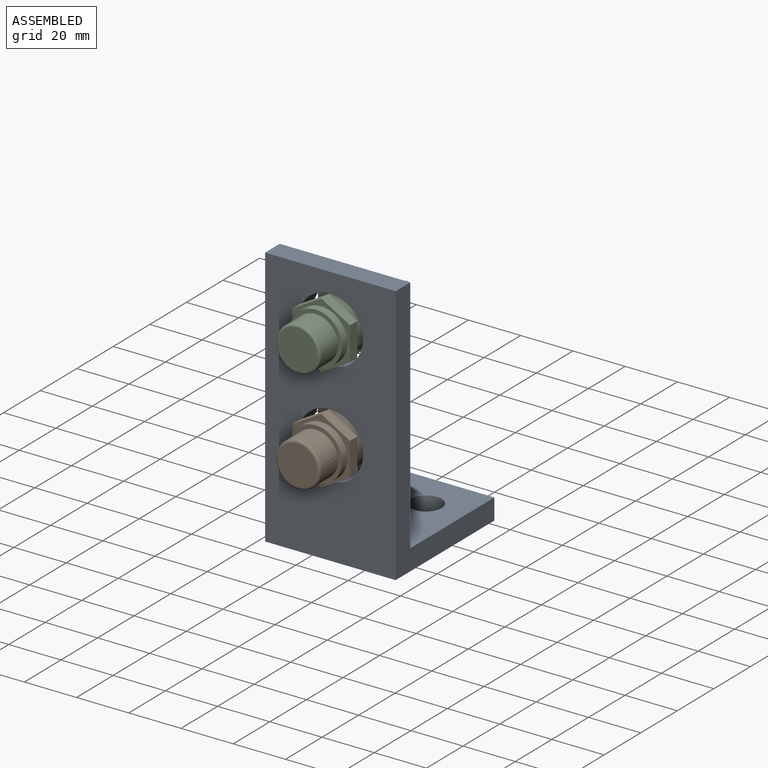
[diagram: assembled view]
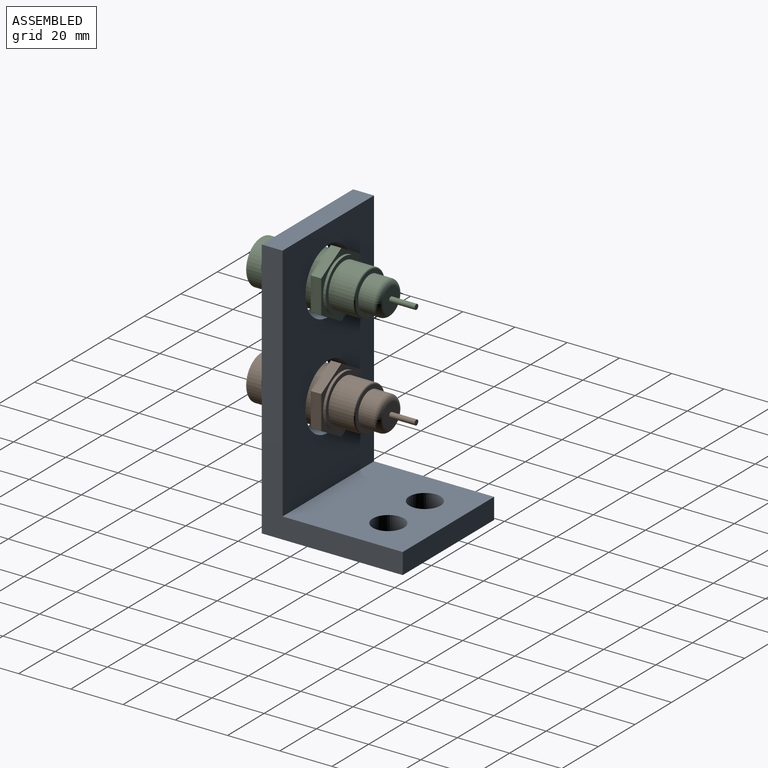
[diagram: assembled view, second angle]
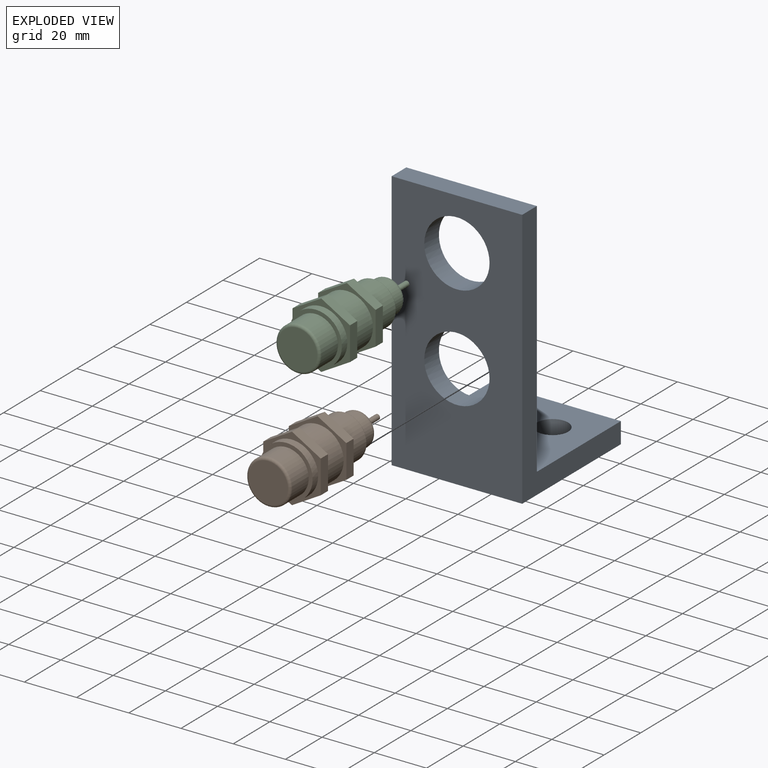
[diagram: exploded view]
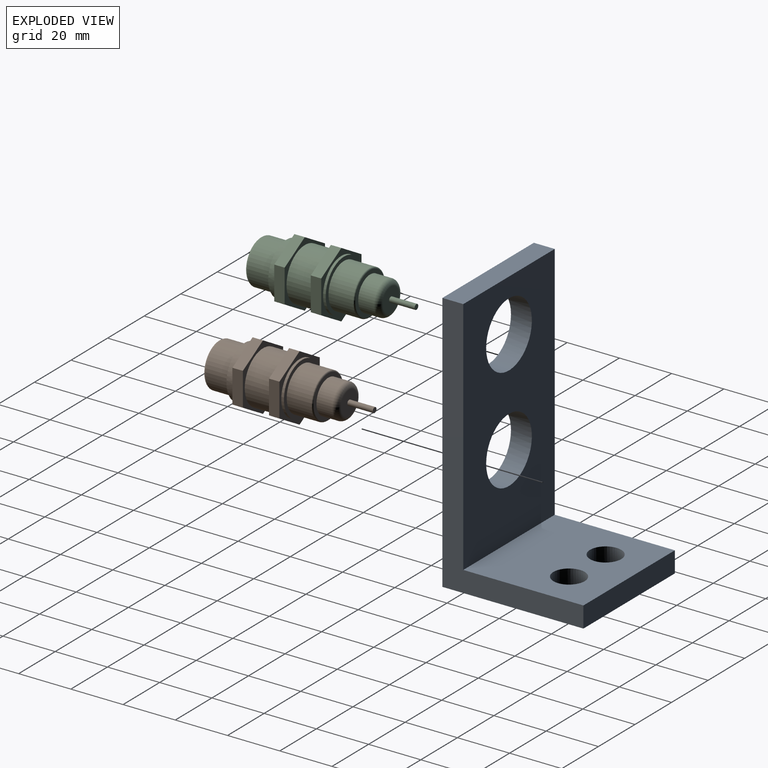
[diagram: exploded view, second angle]
ASSEMBLY  parts=3 mates=2
PART A: 12 faces, bbox 50x54x100 mm
  f0: plane 50x8mm, normal (0,1,0), area 400mm2, adj f1,f5,f6,f7
  f1: plane 50x46mm, normal (0,0,1), area 2073.8mm2, adj f0,f2,f6,f7,f10,f11
  f2: plane 92x50mm, normal (0,1,0), area 3618.3mm2, adj f1,f3,f6,f7,f8,f9
  f3: plane 50x8mm, normal (0,0,1), area 400mm2, adj f2,f4,f6,f7
  f4: plane 100x50mm, normal (0,-1,0), area 4018.3mm2, adj f3,f5,f6,f7,f8,f9
  f5: plane 54x50mm, normal (0,0,-1), area 2473.8mm2, adj f0,f4,f6,f7,f10,f11
  f6: plane 100x54mm, normal (1,0,0), area 1168mm2, adj f0,f1,f2,f3,f4,f5
  f7: plane 100x54mm, normal (-1,0,0), area 1168mm2, adj f0,f1,f2,f3,f4,f5
  f8: cylinder r=12.5mm len=25mm, axis (0,-1,0), area 628.3mm2, adj f2,f4
  f9: cylinder r=12.5mm len=25mm, axis (0,-1,0), area 628.3mm2, adj f2,f4
  f10: cylinder r=6mm len=12mm, axis (0,0,1), area 301.6mm2, adj f1,f5
  f11: cylinder r=6mm len=12mm, axis (0,0,1), area 301.6mm2, adj f1,f5
PART B: 32 faces, bbox 22x59.7x25.4 mm
  f0: cylinder r=1mm len=9.75mm, axis (0,-1,0), area 61.2mm2, adj f1,f9
  f1: plane 9x9mm, normal (0,1,0), area 60.5mm2, adj f0,f2
  f2: torus R=4.5mm, axis (0,-1,0), area 114mm2, adj f1,f3
  f3: cylinder r=6.5mm len=13mm, axis (0,-1,0), area 245mm2, adj f2,f4
  f4: plane 16x16mm, normal (0,1,0), area 68.3mm2, adj f3,f5
  f5: torus R=8mm, axis (0,-1,0), area 41mm2, adj f4,f6
  f6: cylinder r=8.5mm len=17mm, axis (0,-1,0), area 507.4mm2, adj f5,f7
  f7: plane 20x20mm, normal (0,1,0), area 87.2mm2, adj f6,f8
  f8: cylinder r=10mm len=20mm, axis (0,-1,0), area 62.8mm2, adj f7,f16
  f9: plane 2x2mm, normal (0,1,0), area 3.1mm2, adj f0
  f10: plane 12.72x4mm, normal (1,0,0), area 50.9mm2, adj f11,f15,f16,f17
  f11: plane 11.01x6.36mm, normal (0.5,0,-0.87), area 50.9mm2, adj f10,f12,f16,f17
  f12: plane 11.01x6.36mm, normal (-0.5,0,-0.87), area 50.9mm2, adj f11,f13,f16,f17
  f13: plane 12.72x4mm, normal (-1,0,0), area 50.9mm2, adj f12,f14,f16,f17
  f14: plane 11.01x6.36mm, normal (-0.5,0,0.87), area 50.9mm2, adj f13,f15,f16,f17
  f15: plane 11.01x6.36mm, normal (0.5,0,0.87), area 50.9mm2, adj f10,f14,f16,f17
  f16: plane 25.44x22.03mm, normal (0,1,0), area 106.1mm2, adj f8,f10,f11,f12,f13,f14,f15
  f17: plane 25.44x22.03mm, normal (0,-1,0), area 106.1mm2, adj f10,f11,f12,f13,f14,f15,f31
  f18: plane 15x15mm, normal (0,-1,0), area 176.7mm2, adj f19
  f19: torus R=7.5mm, axis (0,-1,0), area 80.3mm2, adj f18,f20
  f20: cylinder r=8.5mm len=17mm, axis (0,-1,0), area 480.7mm2, adj f19,f21
  f21: plane 20x20mm, normal (0,-1,0), area 87.2mm2, adj f20,f22
  f22: cylinder r=10mm len=20mm, axis (0,-1,0), area 188.5mm2, adj f21,f23
  f23: plane 25.44x22.03mm, normal (0,-1,0), area 106.1mm2, adj f22,f24,f25,f26,f27,f28,f29
  f24: plane 11.01x6.36mm, normal (-0.5,0,0.87), area 50.9mm2, adj f23,f25,f29,f30
  f25: plane 12.72x4mm, normal (-1,0,0), area 50.9mm2, adj f23,f24,f26,f30
  f26: plane 11.01x6.36mm, normal (-0.5,0,-0.87), area 50.9mm2, adj f23,f25,f27,f30
  f27: plane 11.01x6.36mm, normal (0.5,0,-0.87), area 50.9mm2, adj f23,f26,f28,f30
  f28: plane 12.72x4mm, normal (1,0,0), area 50.9mm2, adj f23,f27,f29,f30
  f29: plane 11.01x6.36mm, normal (0.5,0,0.87), area 50.9mm2, adj f23,f24,f28,f30
  f30: plane 25.44x22.03mm, normal (0,1,0), area 106.1mm2, adj f24,f25,f26,f27,f28,f29,f31
  f31: cylinder r=10mm len=20mm, axis (0,-1,0), area 628.3mm2, adj f17,f30
PART C: same geometry as B
PLACE A t=(-70.49,-54.78,-56.12)mm fixed
PLACE B t=(-70.49,-87.78,-66.12)mm
PLACE C t=(-70.49,-87.78,-26.12)mm
MATE fastened B.f0 <-> A.f8  axis (0,-1,0) through (-70.49,-85.78,-66.12)mm
MATE fastened C.f0 <-> A.f9  axis (0,-1,0) through (-70.49,-85.78,-26.12)mm
